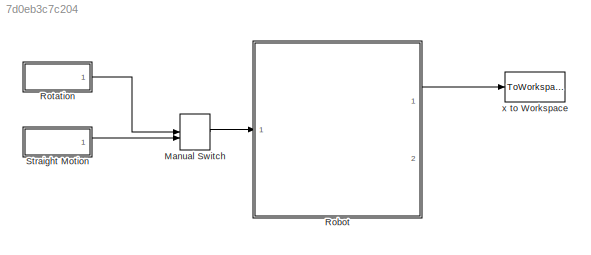
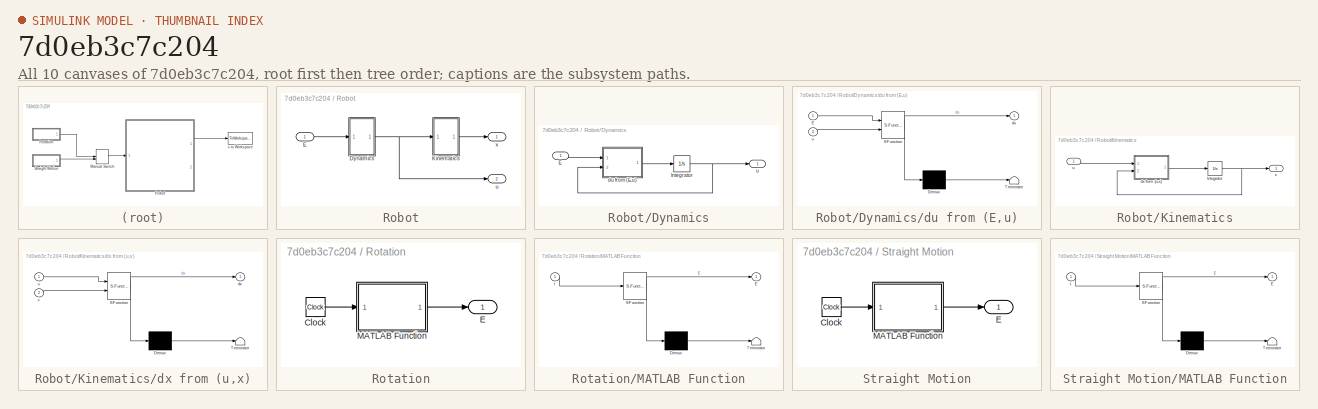
[diagram: thumbnail index - all 10 canvases of the model, root first then tree order]
MODEL slx_7d0eb3c7c204
KIND model
CONFIG AbsTol = auto
CONFIG EnableMultiTasking = on
CONFIG FixedStep = 0.01
CONFIG MaxStep = auto
CONFIG MinStep = auto
CONFIG RelTol = 1e-3
CONFIG SampleTimeConstraint = Unconstrained
CONFIG Solver = ode3
CONFIG SolverName = ode3
CONFIG StartTime = 0.0
CONFIG StopTime = 10.0
BLOCK [ManualSwitch] Manual Switch
  CurrentSetting = 0
BLOCK [SubSystem] Robot
  Ports = [1, 2]
  RequestExecContextInheritance = off
  Variant = off
BLOCK [SubSystem] Robot/Dynamics
  Ports = [1, 1]
  RequestExecContextInheritance = off
  Variant = off
BLOCK [Inport] Robot/Dynamics/E
  IconDisplay = Port number
  PortDimensions = 3
BLOCK [Integrator] Robot/Dynamics/Integrator
  InitialCondition = [uIni vIni wIni]
  Ports = [1, 1]
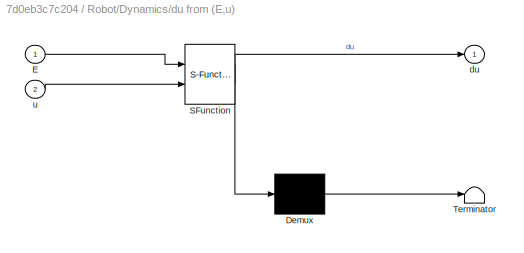
BLOCK [SubSystem] Robot/Dynamics/du from (E,u)
  ErrorFcn = Stateflow.Translate.translate
  PermitHierarchicalResolution = ExplicitOnly
  Ports = [2, 1]
  RequestExecContextInheritance = off
  SFBlockType = MATLAB Function
  TreatAsAtomicUnit = on
  Variant = off
BLOCK [Demux] Robot/Dynamics/du from (E,u)/ Demux 
  Outputs = 1
  Ports = [1, 1]
BLOCK [S-Function] Robot/Dynamics/du from (E,u)/ SFunction 
  EnableBusSupport = on
  FunctionName = sf_sfun
  PortCounts = [2 2]
  Ports = [2, 2]
  SFcnIsStateOwnerBlock = off
  SFunctionDeploymentMode = off
  Tag = Stateflow S-Function RobotModel 1
BLOCK [Terminator] Robot/Dynamics/du from (E,u)/ Terminator 
BLOCK [Inport] Robot/Dynamics/du from (E,u)/E
  IconDisplay = Port number
BLOCK [Outport] Robot/Dynamics/du from (E,u)/du
  IconDisplay = Port number
BLOCK [Inport] Robot/Dynamics/du from (E,u)/u
  IconDisplay = Port number
  Port = 2
BLOCK [Outport] Robot/Dynamics/u
  IconDisplay = Port number
BLOCK [Inport] Robot/E
  IconDisplay = Port number
BLOCK [SubSystem] Robot/Kinematics
  Ports = [1, 1]
  RequestExecContextInheritance = off
  Variant = off
BLOCK [Integrator] Robot/Kinematics/Integrator
  InitialCondition = [xIni yIni aIni]
  Ports = [1, 1]
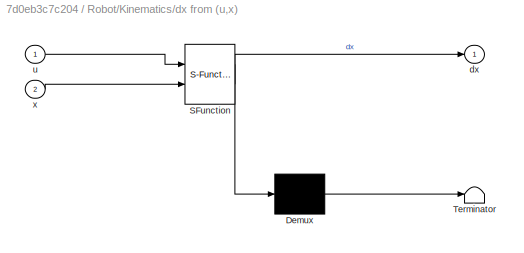
BLOCK [SubSystem] Robot/Kinematics/dx from (u,x)
  ErrorFcn = Stateflow.Translate.translate
  PermitHierarchicalResolution = ExplicitOnly
  Ports = [2, 1]
  RequestExecContextInheritance = off
  SFBlockType = MATLAB Function
  TreatAsAtomicUnit = on
  Variant = off
BLOCK [Demux] Robot/Kinematics/dx from (u,x)/ Demux 
  Outputs = 1
  Ports = [1, 1]
BLOCK [S-Function] Robot/Kinematics/dx from (u,x)/ SFunction 
  EnableBusSupport = on
  FunctionName = sf_sfun
  PortCounts = [2 2]
  Ports = [2, 2]
  SFcnIsStateOwnerBlock = off
  SFunctionDeploymentMode = off
  Tag = Stateflow S-Function RobotModel 2
BLOCK [Terminator] Robot/Kinematics/dx from (u,x)/ Terminator 
BLOCK [Outport] Robot/Kinematics/dx from (u,x)/dx
  IconDisplay = Port number
BLOCK [Inport] Robot/Kinematics/dx from (u,x)/u
  IconDisplay = Port number
BLOCK [Inport] Robot/Kinematics/dx from (u,x)/x
  IconDisplay = Port number
  Port = 2
BLOCK [Inport] Robot/Kinematics/u
  IconDisplay = Port number
  PortDimensions = 3
BLOCK [Outport] Robot/Kinematics/x
  IconDisplay = Port number
BLOCK [Outport] Robot/u
  IconDisplay = Port number
  Port = 2
BLOCK [Outport] Robot/x
  IconDisplay = Port number
BLOCK [SubSystem] Rotation
  Ports = [0, 1]
  RequestExecContextInheritance = off
  Variant = off
BLOCK [Clock] Rotation/Clock
BLOCK [Outport] Rotation/E
  IconDisplay = Port number
BLOCK [SubSystem] Rotation/MATLAB Function
  ErrorFcn = Stateflow.Translate.translate
  PermitHierarchicalResolution = ExplicitOnly
  Ports = [1, 1]
  RequestExecContextInheritance = off
  SFBlockType = MATLAB Function
  TreatAsAtomicUnit = on
  Variant = off
BLOCK [Demux] Rotation/MATLAB Function/ Demux 
  Outputs = 1
  Ports = [1, 1]
BLOCK [S-Function] Rotation/MATLAB Function/ SFunction 
  EnableBusSupport = on
  FunctionName = sf_sfun
  PortCounts = [1 2]
  Ports = [1, 2]
  SFcnIsStateOwnerBlock = off
  SFunctionDeploymentMode = off
  Tag = Stateflow S-Function RobotModel 7
BLOCK [Terminator] Rotation/MATLAB Function/ Terminator 
BLOCK [Outport] Rotation/MATLAB Function/E
  IconDisplay = Port number
BLOCK [Inport] Rotation/MATLAB Function/t
  IconDisplay = Port number
BLOCK [SubSystem] Straight Motion
  Ports = [0, 1]
  RequestExecContextInheritance = off
  Variant = off
BLOCK [Clock] Straight Motion/Clock
BLOCK [Outport] Straight Motion/E
  IconDisplay = Port number
BLOCK [SubSystem] Straight Motion/MATLAB Function
  ErrorFcn = Stateflow.Translate.translate
  PermitHierarchicalResolution = ExplicitOnly
  Ports = [1, 1]
  RequestExecContextInheritance = off
  SFBlockType = MATLAB Function
  TreatAsAtomicUnit = on
  Variant = off
BLOCK [Demux] Straight Motion/MATLAB Function/ Demux 
  Outputs = 1
  Ports = [1, 1]
BLOCK [S-Function] Straight Motion/MATLAB Function/ SFunction 
  EnableBusSupport = on
  FunctionName = sf_sfun
  PortCounts = [1 2]
  Ports = [1, 2]
  SFcnIsStateOwnerBlock = off
  SFunctionDeploymentMode = off
  Tag = Stateflow S-Function RobotModel 8
BLOCK [Terminator] Straight Motion/MATLAB Function/ Terminator 
BLOCK [Outport] Straight Motion/MATLAB Function/E
  IconDisplay = Port number
BLOCK [Inport] Straight Motion/MATLAB Function/t
  IconDisplay = Port number
BLOCK [ToWorkspace] x to Workspace
  MaxDataPoints = inf
  Ports = [1]
  SampleTime = -1
  SaveFormat = Timeseries
  VariableName = x
LINE Manual Switch:1 -> Robot:1
LINE Robot/Dynamics/E:1 -> Robot/Dynamics/du from (E,u):1
NET Robot/Dynamics/Integrator:1 -> Robot/Dynamics/du from (E,u):2, Robot/Dynamics/u:1
LINE Robot/Dynamics/du from (E,u):1 -> Robot/Dynamics/Integrator:1
NET Robot/Dynamics:1 -> Robot/Kinematics:1, Robot/u:1
LINE Robot/E:1 -> Robot/Dynamics:1
NET Robot/Kinematics/Integrator:1 -> Robot/Kinematics/dx from (u,x):2, Robot/Kinematics/x:1
LINE Robot/Kinematics/dx from (u,x):1 -> Robot/Kinematics/Integrator:1
LINE Robot/Kinematics/u:1 -> Robot/Kinematics/dx from (u,x):1
LINE Robot/Kinematics:1 -> Robot/x:1
LINE Robot:1 -> x to Workspace:1
LINE Rotation/Clock:1 -> Rotation/MATLAB Function:1
LINE Rotation/MATLAB Function:1 -> Rotation/E:1
LINE Rotation:1 -> Manual Switch:1
LINE Straight Motion/Clock:1 -> Straight Motion/MATLAB Function:1
LINE Straight Motion/MATLAB Function:1 -> Straight Motion/E:1
LINE Straight Motion:1 -> Manual Switch:2
note: NET lines group one-source signal fan-out (src -> all destinations, sorted); 1:1 wires keep LINE
CHART Robot/Dynamics/du from (E,u) states=1 transitions=1
  STATE_LABEL 'eML_blk_kernel()'
  STATE_LABEL 'SCRIPT:\nfunction du = fcn(E,u)\n% This function returns the derivative of the velocity as a function of the\n% voltage input and current velocity. This implements the forward\n% dynamics.\n\nm=1.5;\nIz=0.0059;\nR=0.0254;\nL=0.0889;\nn=100;\nRa=16.66;\nk2=0.002361;\nk3=0.004244;\nb0=1.2777e-6;\nJ0=1.2581e-9;\n\nH = [1/m,0,0; 0,1/m,0; 0,0,1/Iz];\nB = [0,cos(pi/6),-cos(pi/6); -1,sin(pi/6),sin(pi/6); L,L,L];\nG = eye([...<+172ch>'
CHART Robot/Kinematics/dx from (u,x) states=1 transitions=1
  STATE_LABEL 'eML_blk_kernel()'
  STATE_LABEL 'SCRIPT:\nfunction dx = fcn(u,x)\n% This function computes the derivative of the position and orientation as\n% a function of the velocity and current position.\nm=1.5;\nIz=0.0059;\nR=0.0254;\nL=0.0889;\nn=100;\nRa=16.66;\nk2=0.002361;\nk3=0.004244;\nb0=1.2777e-6;\nJ0=1.2581e-9;\n\ndx = [cos(x(3)),-sin(x(3)),0; sin(x(3)),cos(x(3)),0; 0,0,1] * u;\n'
CHART Rotation/MATLAB Function states=1 transitions=1
  STATE_LABEL 'eML_blk_kernel()'
  STATE_LABEL 'SCRIPT:\nfunction E = fcn(t)\n% Voltage input\n\nE = [3; 3; 3];\n'
CHART Straight Motion/MATLAB Function states=1 transitions=1
  STATE_LABEL 'eML_blk_kernel()'
  STATE_LABEL 'SCRIPT:\nfunction E = fcn(t)\n% Desired voltage input.\n\nE = [0; 3; -3];\n'
